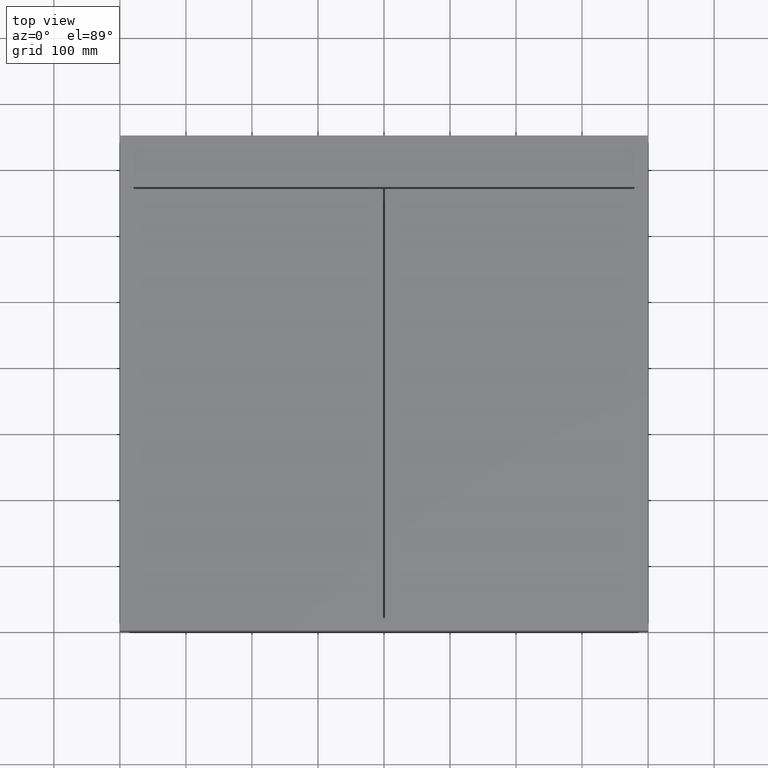
[diagram: clean part render]
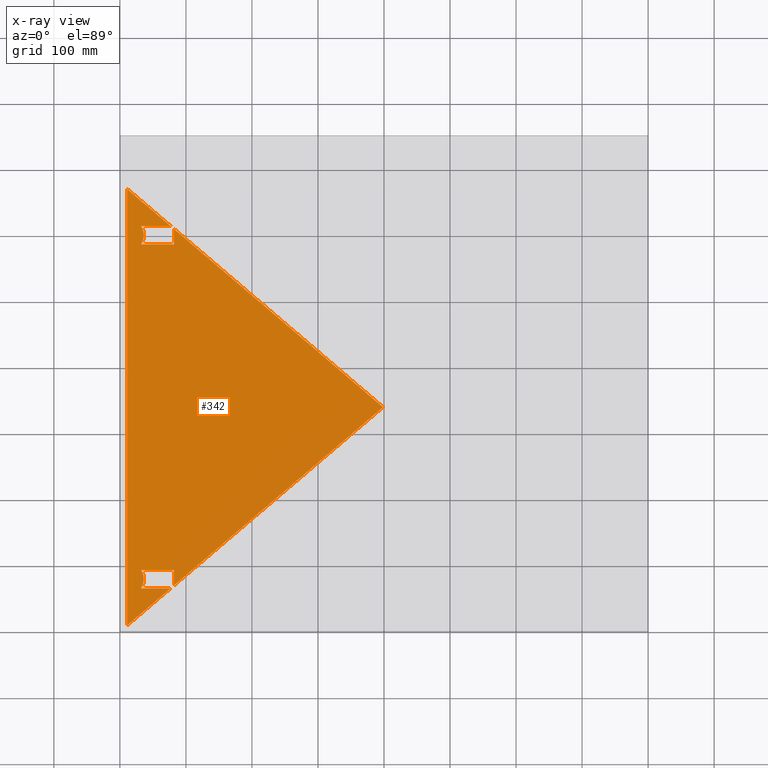
[diagram: x-ray — body ghosted, one internal face saturated and labeled with its STEP entity id]
A machine part, top view, then the same camera in x-ray: the body is ghosted and one INTERNAL B-rep face — a face not visible from any outside direction — is saturated and labeled: STEP entity #342.
In plain terms, the highlighted planar face has unit normal (0, 0, -1).
Its self-contained STEP definition (entity closure, byte-faithful):
#132 = DIRECTION ( 'NONE',  ( 0.0000000000000000000, 0.0000000000000000000, -1.000000000000000000 ) ) ;
#137 = VERTEX_POINT ( 'NONE', #2794 ) ;
#252 = AXIS2_PLACEMENT_3D ( 'NONE', #8229, #132, #3745 ) ;
#295 = VERTEX_POINT ( 'NONE', #3079 ) ;
#319 = ORIENTED_EDGE ( 'NONE', *, *, #2562, .F. ) ;
#342 = ADVANCED_FACE ( 'NONE', ( #3134 ), #6727, .T. ) ;
#539 = VERTEX_POINT ( 'NONE', #11652 ) ;
#778 = CARTESIAN_POINT ( 'NONE',  ( 76.65810373042386061, 612.9999000000002525, -6.000100000000078815 ) ) ;
#856 = CARTESIAN_POINT ( 'NONE',  ( -2.775557561562891351E-14, 64.00000000000000000, -6.000100000000078815 ) ) ;
#906 = VECTOR ( 'NONE', #4467, 1000.000000000000000 ) ;
#935 = ORIENTED_EDGE ( 'NONE', *, *, #6471, .F. ) ;
#947 = CARTESIAN_POINT ( 'NONE',  ( 11.28768482279199326, 598.9999000000001388, -6.000100000000078815 ) ) ;
#996 = CARTESIAN_POINT ( 'NONE',  ( 81.99999999999997158, 92.00000000000008527, -6.000100000000078815 ) ) ;
#1035 = DIRECTION ( 'NONE',  ( 0.0000000000000000000, 0.0000000000000000000, -1.000000000000000000 ) ) ;
#1065 = VERTEX_POINT ( 'NONE', #996 ) ;
#1236 = CARTESIAN_POINT ( 'NONE',  ( 0.0000000000000000000, 612.9999000000001388, -6.000100000000078815 ) ) ;
#1286 = VECTOR ( 'NONE', #2421, 1000.000000000000000 ) ;
#1525 = EDGE_CURVE ( 'NONE', #5362, #539, #6900, .T. ) ;
#1586 = CARTESIAN_POINT ( 'NONE',  ( 11.00000000000012079, 8.000000000000007105, -6.000100000000078815 ) ) ;
#1812 = CARTESIAN_POINT ( 'NONE',  ( 11.00000000000012079, 0.0000000000000000000, -6.000100000000078815 ) ) ;
#1863 = EDGE_CURVE ( 'NONE', #11529, #10337, #9328, .T. ) ;
#1875 = EDGE_LOOP ( 'NONE', ( #11522, #9407, #8145, #2981, #935, #7144, #8316, #10705, #4117, #2180, #6402, #9502, #319, #3481, #8575 ) ) ;
#1920 = DIRECTION ( 'NONE',  ( -4.956352788505159323E-16, -1.000000000000000000, 0.0000000000000000000 ) ) ;
#2180 = ORIENTED_EDGE ( 'NONE', *, *, #7009, .T. ) ;
#2248 = DIRECTION ( 'NONE',  ( 0.0000000000000000000, 0.0000000000000000000, -1.000000000000000000 ) ) ;
#2342 = DIRECTION ( 'NONE',  ( 0.7608482568570761329, 0.6489298344486472692, -5.877471754111437540E-39 ) ) ;
#2421 = DIRECTION ( 'NONE',  ( 0.7608482568570761329, 0.6489298344486472692, -5.877471754111437540E-39 ) ) ;
#2514 = DIRECTION ( 'NONE',  ( -1.000000000000000000, 2.220446049250313081E-15, 0.0000000000000000000 ) ) ;
#2532 = EDGE_CURVE ( 'NONE', #7357, #7171, #8953, .T. ) ;
#2562 = EDGE_CURVE ( 'NONE', #539, #7734, #3636, .T. ) ;
#2597 = EDGE_CURVE ( 'NONE', #1065, #5362, #6407, .T. ) ;
#2769 = CARTESIAN_POINT ( 'NONE',  ( 82.00000000000001421, 0.0000000000000000000, -6.000100000000078815 ) ) ;
#2794 = CARTESIAN_POINT ( 'NONE',  ( 32.00000000000002842, 584.9999000000002525, -6.000100000000078815 ) ) ;
#2916 = VERTEX_POINT ( 'NONE', #8876 ) ;
#2981 = ORIENTED_EDGE ( 'NONE', *, *, #2532, .F. ) ;
#3079 = CARTESIAN_POINT ( 'NONE',  ( 82.00000000000001421, 584.9999000000001388, -6.000100000000078815 ) ) ;
#3105 = VERTEX_POINT ( 'NONE', #1586 ) ;
#3134 = FACE_OUTER_BOUND ( 'NONE', #1875, .T. ) ;
#3481 = ORIENTED_EDGE ( 'NONE', *, *, #1525, .F. ) ;
#3515 = EDGE_CURVE ( 'NONE', #295, #137, #6995, .T. ) ;
#3604 = LINE ( 'NONE', #7195, #7998 ) ;
#3636 = LINE ( 'NONE', #7229, #9590 ) ;
#3745 = DIRECTION ( 'NONE',  ( -1.000000000000000000, 0.0000000000000000000, 0.0000000000000000000 ) ) ;
#3754 = CARTESIAN_POINT ( 'NONE',  ( 36.28768482279201635, 78.00000000000007105, -6.000100000000078815 ) ) ;
#3851 = CIRCLE ( 'NONE', #10451, 24.99999999999999289 ) ;
#3893 = CARTESIAN_POINT ( 'NONE',  ( 11.28768482279202168, 78.00000000000007105, -6.000100000000078815 ) ) ;
#4117 = ORIENTED_EDGE ( 'NONE', *, *, #9266, .T. ) ;
#4184 = CARTESIAN_POINT ( 'NONE',  ( 31.99999999999997158, 92.00000000000008527, -6.000100000000078815 ) ) ;
#4289 = CIRCLE ( 'NONE', #10897, 24.99999999999999289 ) ;
#4312 = LINE ( 'NONE', #7905, #10785 ) ;
#4428 = CIRCLE ( 'NONE', #11034, 25.00000000000000000 ) ;
#4467 = DIRECTION ( 'NONE',  ( -1.000000000000000000, -5.551115123125782702E-16, 0.0000000000000000000 ) ) ;
#4509 = CARTESIAN_POINT ( 'NONE',  ( 32.00000000000002842, 612.9999000000001388, -6.000100000000078815 ) ) ;
#4552 = DIRECTION ( 'NONE',  ( 0.0000000000000000000, 0.0000000000000000000, -1.000000000000000000 ) ) ;
#4642 = DIRECTION ( 'NONE',  ( -1.000000000000000000, 0.0000000000000000000, 0.0000000000000000000 ) ) ;
#4838 = DIRECTION ( 'NONE',  ( 1.000000000000000000, -1.047397406071195429E-46, 0.0000000000000000000 ) ) ;
#4849 = EDGE_CURVE ( 'NONE', #6494, #1065, #4312, .T. ) ;
#4956 = EDGE_CURVE ( 'NONE', #7734, #295, #10873, .T. ) ;
#4975 = VERTEX_POINT ( 'NONE', #10934 ) ;
#5070 = CARTESIAN_POINT ( 'NONE',  ( 31.99999999999997158, 64.00000000000000000, -6.000100000000078815 ) ) ;
#5341 = CIRCLE ( 'NONE', #252, 25.00000000000000000 ) ;
#5362 = VERTEX_POINT ( 'NONE', #6291 ) ;
#5421 = DIRECTION ( 'NONE',  ( -1.443416121223685377E-16, 1.000000000000000000, 0.0000000000000000000 ) ) ;
#5854 = DIRECTION ( 'NONE',  ( -1.000000000000000000, 1.047397406071195429E-46, 0.0000000000000000000 ) ) ;
#6291 = CARTESIAN_POINT ( 'NONE',  ( 81.99999999999995737, 68.55611987096760629, -6.000100000000078815 ) ) ;
#6369 = DIRECTION ( 'NONE',  ( 1.047397406071195429E-46, -1.000000000000000000, 0.0000000000000000000 ) ) ;
#6393 = VECTOR ( 'NONE', #4838, 1000.000000000000000 ) ;
#6402 = ORIENTED_EDGE ( 'NONE', *, *, #3515, .F. ) ;
#6407 = LINE ( 'NONE', #10017, #10158 ) ;
#6471 = EDGE_CURVE ( 'NONE', #3105, #7357, #6823, .T. ) ;
#6494 = VERTEX_POINT ( 'NONE', #4184 ) ;
#6727 = PLANE ( 'NONE',  #6746 ) ;
#6746 = AXIS2_PLACEMENT_3D ( 'NONE', #10356, #2248, #5854 ) ;
#6823 = LINE ( 'NONE', #10448, #8533 ) ;
#6900 = LINE ( 'NONE', #10527, #1286 ) ;
#6995 = LINE ( 'NONE', #10621, #11088 ) ;
#7009 = EDGE_CURVE ( 'NONE', #2916, #137, #5341, .T. ) ;
#7037 = CARTESIAN_POINT ( 'NONE',  ( 82.00000000000004263, 608.4437801290322341, -6.000100000000078815 ) ) ;
#7144 = ORIENTED_EDGE ( 'NONE', *, *, #7336, .T. ) ;
#7171 = VERTEX_POINT ( 'NONE', #5070 ) ;
#7195 = CARTESIAN_POINT ( 'NONE',  ( 334.9423020764157286, 392.7085073828639565, -6.000100000000078815 ) ) ;
#7229 = CARTESIAN_POINT ( 'NONE',  ( 334.9423020764157286, 392.7085073828639565, -6.000100000000078815 ) ) ;
#7336 = EDGE_CURVE ( 'NONE', #3105, #4975, #9915, .T. ) ;
#7357 = VERTEX_POINT ( 'NONE', #9973 ) ;
#7470 = DIRECTION ( 'NONE',  ( 0.0000000000000000000, 0.0000000000000000000, -1.000000000000000000 ) ) ;
#7475 = EDGE_CURVE ( 'NONE', #11289, #7171, #3851, .T. ) ;
#7734 = VERTEX_POINT ( 'NONE', #7037 ) ;
#7905 = CARTESIAN_POINT ( 'NONE',  ( 0.0000000000000000000, 92.00000000000008527, -6.000100000000078815 ) ) ;
#7998 = VECTOR ( 'NONE', #10821, 1000.000000000000114 ) ;
#8132 = VECTOR ( 'NONE', #6369, 1000.000000000000000 ) ;
#8145 = ORIENTED_EDGE ( 'NONE', *, *, #7475, .T. ) ;
#8151 = DIRECTION ( 'NONE',  ( -1.000000000000000000, 0.0000000000000000000, 0.0000000000000000000 ) ) ;
#8229 = CARTESIAN_POINT ( 'NONE',  ( 11.28768482279199326, 598.9999000000001388, -6.000100000000078815 ) ) ;
#8316 = ORIENTED_EDGE ( 'NONE', *, *, #9259, .F. ) ;
#8533 = VECTOR ( 'NONE', #2342, 1000.000000000000000 ) ;
#8551 = VECTOR ( 'NONE', #5421, 1000.000000000000000 ) ;
#8575 = ORIENTED_EDGE ( 'NONE', *, *, #2597, .F. ) ;
#8876 = CARTESIAN_POINT ( 'NONE',  ( 36.28768482279199503, 598.9999000000001388, -6.000100000000078815 ) ) ;
#8953 = LINE ( 'NONE', #856, #906 ) ;
#9131 = CARTESIAN_POINT ( 'NONE',  ( 11.28768482279202168, 78.00000000000007105, -6.000100000000078815 ) ) ;
#9259 = EDGE_CURVE ( 'NONE', #10337, #4975, #3604, .T. ) ;
#9266 = EDGE_CURVE ( 'NONE', #11529, #2916, #4428, .T. ) ;
#9328 = LINE ( 'NONE', #1236, #6393 ) ;
#9407 = ORIENTED_EDGE ( 'NONE', *, *, #11281, .T. ) ;
#9502 = ORIENTED_EDGE ( 'NONE', *, *, #4956, .F. ) ;
#9590 = VECTOR ( 'NONE', #10854, 1000.000000000000114 ) ;
#9915 = LINE ( 'NONE', #1812, #8551 ) ;
#9973 = CARTESIAN_POINT ( 'NONE',  ( 76.65810373042434378, 64.00000000000005684, -6.000100000000078815 ) ) ;
#10017 = CARTESIAN_POINT ( 'NONE',  ( 81.99999999999992895, -5.551115123125782702E-14, -6.000100000000078815 ) ) ;
#10158 = VECTOR ( 'NONE', #1920, 1000.000000000000000 ) ;
#10337 = VERTEX_POINT ( 'NONE', #778 ) ;
#10356 = CARTESIAN_POINT ( 'NONE',  ( 0.0000000000000000000, 0.0000000000000000000, -6.000100000000078815 ) ) ;
#10448 = CARTESIAN_POINT ( 'NONE',  ( 0.6823121635106399463, -0.7999879072912996492, -6.000100000000078815 ) ) ;
#10451 = AXIS2_PLACEMENT_3D ( 'NONE', #3893, #7470, #11095 ) ;
#10527 = CARTESIAN_POINT ( 'NONE',  ( 0.6823121635106399463, -0.7999879072912996492, -6.000100000000078815 ) ) ;
#10621 = CARTESIAN_POINT ( 'NONE',  ( 1.304512053934558935E-12, 584.9999000000003662, -6.000100000000078815 ) ) ;
#10705 = ORIENTED_EDGE ( 'NONE', *, *, #1863, .F. ) ;
#10785 = VECTOR ( 'NONE', #11520, 1000.000000000000000 ) ;
#10821 = DIRECTION ( 'NONE',  ( -0.7608482568570762439, 0.6489298344486470471, 0.0000000000000000000 ) ) ;
#10854 = DIRECTION ( 'NONE',  ( -0.7608482568570762439, 0.6489298344486470471, 0.0000000000000000000 ) ) ;
#10873 = LINE ( 'NONE', #2769, #8132 ) ;
#10897 = AXIS2_PLACEMENT_3D ( 'NONE', #9131, #1035, #4642 ) ;
#10934 = CARTESIAN_POINT ( 'NONE',  ( 11.00000000000001066, 668.9999000000001388, -6.000100000000078815 ) ) ;
#11034 = AXIS2_PLACEMENT_3D ( 'NONE', #947, #4552, #8151 ) ;
#11088 = VECTOR ( 'NONE', #2514, 1000.000000000000000 ) ;
#11095 = DIRECTION ( 'NONE',  ( -1.000000000000000000, 0.0000000000000000000, 0.0000000000000000000 ) ) ;
#11281 = EDGE_CURVE ( 'NONE', #6494, #11289, #4289, .T. ) ;
#11289 = VERTEX_POINT ( 'NONE', #3754 ) ;
#11520 = DIRECTION ( 'NONE',  ( 1.000000000000000000, -1.047397406071195429E-46, 0.0000000000000000000 ) ) ;
#11522 = ORIENTED_EDGE ( 'NONE', *, *, #4849, .F. ) ;
#11529 = VERTEX_POINT ( 'NONE', #4509 ) ;
#11652 = CARTESIAN_POINT ( 'NONE',  ( 398.5000000000000568, 338.4999500000000126, -6.000100000000078815 ) ) ;